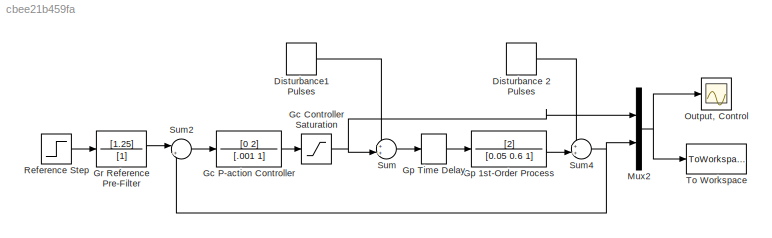
MODEL slx_cbee21b459fa
KIND model
CONFIG AbsTol = auto
CONFIG EnableMultiTasking = on
CONFIG FixedStep = .001
CONFIG MaxStep = .002
CONFIG MinStep = auto
CONFIG RelTol = 1e-3
CONFIG SampleTimeConstraint = Unconstrained
CONFIG Solver = ode3
CONFIG SolverName = ode3
CONFIG StartTime = 0.0
CONFIG StopTime = 1.5
BLOCK [DiscretePulseGenerator] Disturbance 2 Pulses
  Amplitude = 0.1
  Period = 0.4
  PhaseDelay = 1
  Ports = [0, 1]
  PulseType = Time based
  PulseWidth = 50
BLOCK [DiscretePulseGenerator] Disturbance1 Pulses
  Amplitude = 0.1
  Period = 0.2
  PhaseDelay = 1.1
  Ports = [0, 1]
  PulseType = Time based
  PulseWidth = 50
BLOCK [Saturate] Gc Controller Saturation
  InputPortMap = u0
  LinearizeAsGain = off
  LowerLimit = -20
  Ports = [1, 1]
  UpperLimit = 20
BLOCK [TransferFcn] Gc P-action Controller
  Denominator = [.001 1]
  Numerator = [0 2]
BLOCK [TransferFcn] Gp 1st-Order Process 
  Denominator = [0.05 0.6 1]
  Numerator = [2]
BLOCK [TransportDelay] Gp Time Delay
  DelayTime = 0.1
  Ports = [1, 1]
BLOCK [TransferFcn] Gr Reference Pre-Filter
  Denominator = [1]
  Numerator = [1.25]
BLOCK [Mux] Mux2
  DisplayOption = bar
  Inputs = 2
  Ports = [2, 1]
BLOCK [Scope] Output, Control
  NumInputPorts = 1
  Ports = [1]
  ScopeSpecificationString = C++SS(StrPVP('Location','[693, 246, 1275, 512]'),StrPVP('Open','off'),StrPVP('ZoomMode','xonly'),MxPVP('AxesTitles',53,'struct(''axes1'',''%<SignalLabel>'')'),MxPVP('ScopeGraphics',56,'struct(''FigureColor'',''[0.501960784313725 0.501960784313725 0.501960784313725]'',''AxesColor'',''[0 0 0]'',''AxesTickColor'',''[1 1 1]'',''LineColors'',''[1 1 0;1 0 1;0 1 1;1 0 0;0 1 0;0 0 1]'',''LineStyles'',''-|...<+344ch>
BLOCK [Step] Reference Step
  After = 5
  Before = 1
  SampleTime = 0
  Time = 0.4
BLOCK [Sum] Sum
  IconShape = round
  InputSameDT = off
  Inputs = ++|
  OutDataTypeStr = Inherit: Inherit via internal rule
  Ports = [2, 1]
  SaturateOnIntegerOverflow = off
BLOCK [Sum] Sum2
  IconShape = round
  InputSameDT = off
  Inputs = |+-
  OutDataTypeStr = Inherit: Inherit via internal rule
  Ports = [2, 1]
  SaturateOnIntegerOverflow = off
BLOCK [Sum] Sum4
  IconShape = round
  InputSameDT = off
  Inputs = ++|
  OutDataTypeStr = Inherit: Inherit via internal rule
  Ports = [2, 1]
  SaturateOnIntegerOverflow = off
BLOCK [ToWorkspace] To Workspace
  FixptAsFi = on
  MaxDataPoints = inf
  Ports = [1]
  SampleTime = -1
  Save2DSignal = 3-D array (concatenate along third dimension)
  VariableName = outp1
LINE Disturbance 2 Pulses:1 -> Sum4:1
LINE Disturbance1 Pulses:1 -> Sum:1
NET Gc Controller Saturation:1 -> Mux2:1, Sum:2
LINE Gc P-action Controller:1 -> Gc Controller Saturation:1
LINE Gp 1st-Order Process :1 -> Sum4:2
LINE Gp Time Delay:1 -> Gp 1st-Order Process :1
LINE Gr Reference Pre-Filter:1 -> Sum2:1
NET Mux2:1 -> Output, Control:1, To Workspace:1
LINE Reference Step:1 -> Gr Reference Pre-Filter:1
LINE Sum2:1 -> Gc P-action Controller:1
NET Sum4:1 -> Mux2:2, Sum2:2
LINE Sum:1 -> Gp Time Delay:1
note: NET lines group one-source signal fan-out (src -> all destinations, sorted); 1:1 wires keep LINE
